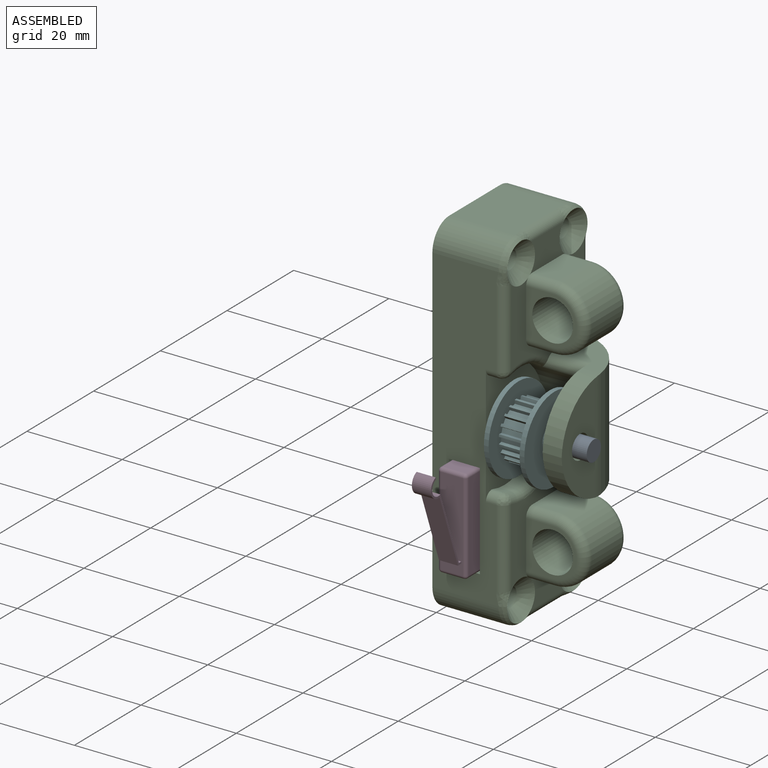
[diagram: assembled view]
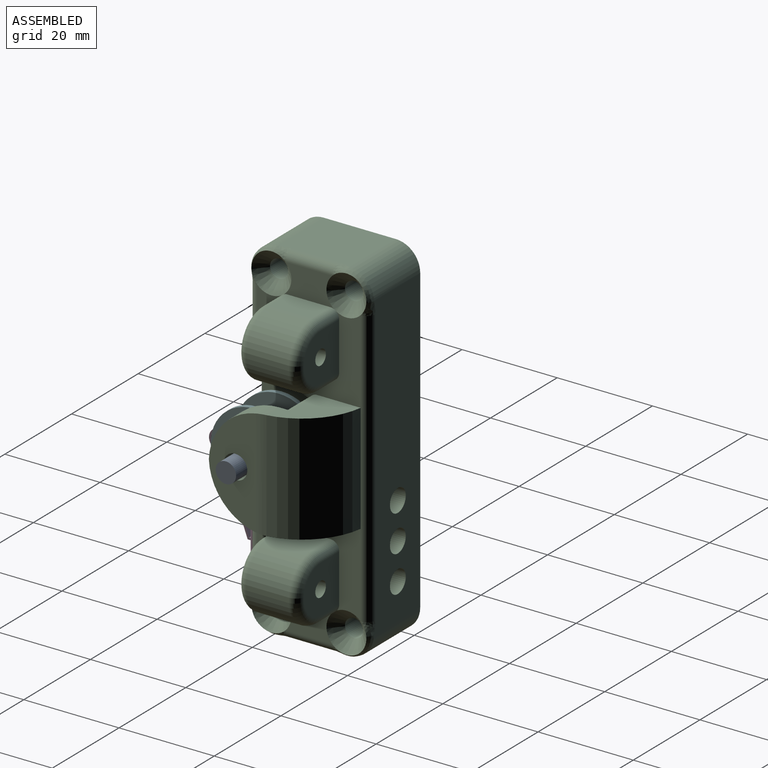
[diagram: assembled view, second angle]
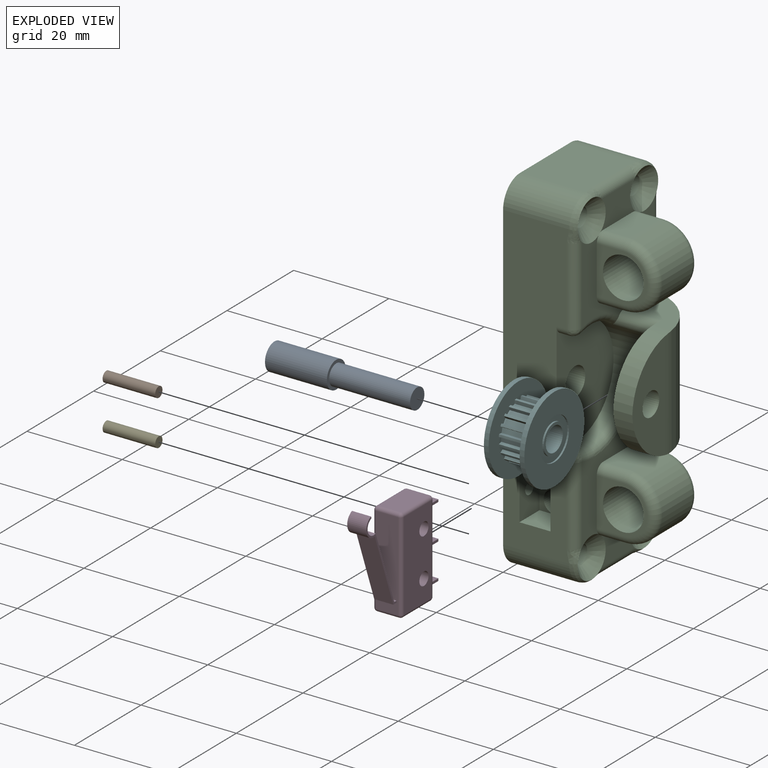
[diagram: exploded view]
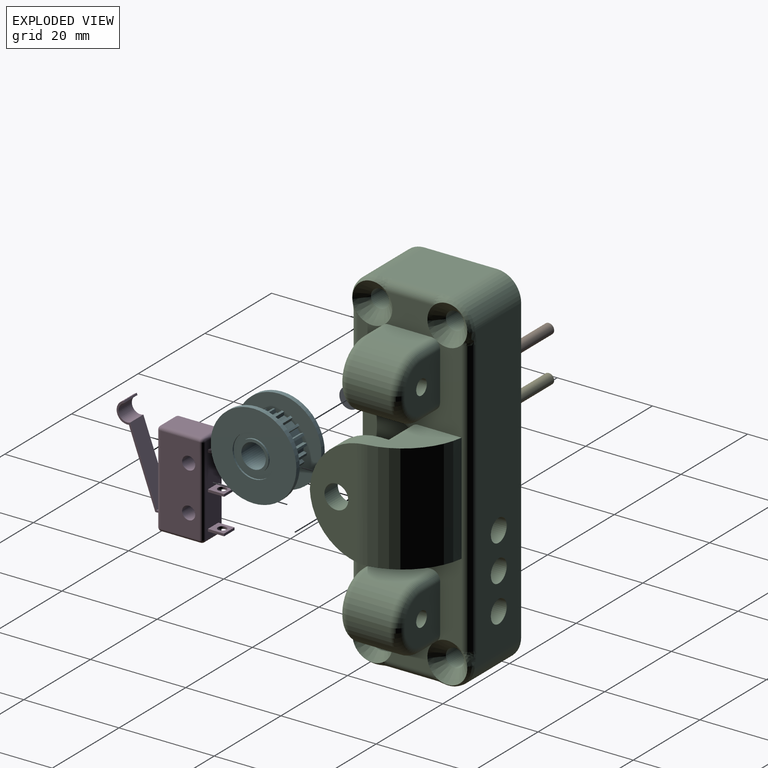
[diagram: exploded view, second angle]
ASSEMBLY  parts=6 mates=6
PART A: 5 faces, bbox 5.7x5.7x30 mm
  f0: plane 5.65x5.65mm, normal (0,0,-1), area 25.1mm2, adj f1
  f1: cylinder r=2.82mm len=13mm, axis (0,0,1), area 230.7mm2, adj f0,f2
  f2: plane 5.65x5.65mm, normal (0,0,1), area 10.5mm2, adj f1,f3
  f3: cylinder r=2.15mm len=17mm, axis (0,0,1), area 229.7mm2, adj f2,f4
  f4: plane 4.3x4.3mm, normal (0,0,1), area 14.5mm2, adj f3
PART B: 3 faces, bbox 2.2x2.2x11 mm
  f0: plane 2.2x2.2mm, normal (0,0,-1), area 3.8mm2, adj f1
  f1: cylinder r=1.1mm len=11.04mm, axis (0,0,1), area 76.3mm2, adj f0,f2
  f2: plane 2.2x2.2mm, normal (0,0,1), area 3.8mm2, adj f1
PART C: 101 faces, bbox 28.3x25.4x73.7 mm
  f0: plane 63.5x13.84mm, normal (0,-1,0), area 666.2mm2, adj f3,f16,f21,f24,f32,f34,f36,f67
  f1: cylinder r=11.49mm len=22.97mm, axis (1,0,0), area 284mm2, adj f67,f72,f77,f78,f79,f80,f81,f82
  f2: plane 21.72x18.22mm, normal (1,0,0), area 185.3mm2, adj f7,f8,f31,f34,f47,f49,f50,f55
  f3: cylinder r=1.84mm len=16.48mm, axis (0,0,1), area 47.5mm2, adj f0,f15,f36,f79
  f4: cylinder r=4.28mm len=10.16mm, axis (0,1,0), area 272.9mm2, adj f49,f53
  f5: cylinder r=4.28mm len=10.16mm, axis (0,1,0), area 272.9mm2, adj f44,f51
  f6: plane 10.37x6.2mm, normal (1,0,0), area 49.7mm2, adj f7,f8,f26,f48,f55,f58
  f7: cone r=1.91mm half-angle=45deg, axis (1,0,0), area 61.9mm2, adj f2,f6,f18,f25,f27,f29,f55
  f8: cone r=1.91mm half-angle=45deg, axis (1,0,0), area 61.9mm2, adj f2,f6,f19,f28,f30,f32,f58
  f9: plane 10.49x6.25mm, normal (1,0,0), area 49.9mm2, adj f10,f11,f39,f43,f61,f64
  f10: cone r=1.91mm half-angle=45deg, axis (1,0,0), area 61.9mm2, adj f9,f15,f20,f33,f35,f37,f61
  f11: cone r=1.91mm half-angle=45deg, axis (1,0,0), area 61.9mm2, adj f9,f15,f17,f36,f38,f40,f64
  f12: plane 15.24x13.84mm, normal (0,0,-1), area 205.3mm2, adj f16,f21,f22,f25,f26,f28
  f13: plane 63.5x13.84mm, normal (0,1,0), area 798.8mm2, adj f16,f22,f23,f29,f31,f33,f90,f91
  f14: plane 15.24x13.84mm, normal (0,0,1), area 205.3mm2, adj f16,f23,f24,f37,f39,f40
  f15: plane 21.72x18.22mm, normal (1,0,0), area 185mm2, adj f3,f10,f11,f31,f41,f44,f45,f61
  f16: plane 73.66x25.4mm, normal (-1,0,0), area 1737.2mm2, adj f0,f12,f13,f14,f17,f18,f19,f20
  f17: cylinder r=1.91mm len=12.95mm, axis (1,0,0), area 155.1mm2, adj f11,f16
  f18: cylinder r=1.91mm len=12.95mm, axis (1,0,0), area 155.1mm2, adj f7,f16
  f19: cylinder r=1.91mm len=12.95mm, axis (1,0,0), area 155.1mm2, adj f8,f16
  f20: cylinder r=1.91mm len=12.95mm, axis (1,0,0), area 155.1mm2, adj f10,f16
  f21: cylinder r=5.08mm len=13.84mm, axis (1,0,0), area 110.4mm2, adj f0,f12,f16,f30
  f22: cylinder r=5.08mm len=13.84mm, axis (-1,0,0), area 110.4mm2, adj f12,f13,f16,f27
  f23: cylinder r=5.08mm len=13.84mm, axis (1,0,0), area 110.4mm2, adj f13,f14,f16,f35
  f24: cylinder r=5.08mm len=13.84mm, axis (-1,0,0), area 110.4mm2, adj f0,f14,f16,f38
  f25: bspline ~3.41x2.08mm, area 5.5mm2, adj f7,f12,f26,f27
  f26: cylinder r=1.84mm len=9.87mm, axis (0,-1,0), area 28.5mm2, adj f6,f12,f25,f28
  f27: bspline ~5.18x5.18mm, area 11.6mm2, adj f7,f22,f25,f29
  f28: bspline ~3.41x2.08mm, area 5.5mm2, adj f8,f12,f26,f30
  f29: bspline ~3.41x2.08mm, area 5.5mm2, adj f7,f13,f27,f31
  f30: bspline ~5.18x5.18mm, area 11.6mm2, adj f8,f21,f28,f32
  f31: cylinder r=1.84mm len=58.13mm, axis (0,0,-1), area 168mm2, adj f2,f13,f15,f29,f33,f76
  f32: bspline ~3.41x2.08mm, area 5.5mm2, adj f0,f8,f30,f34
  f33: bspline ~3.41x2.08mm, area 5.5mm2, adj f10,f13,f31,f35
  f34: cylinder r=1.84mm len=16.48mm, axis (0,0,1), area 47.5mm2, adj f0,f2,f32,f83
  f35: bspline ~6.12x5.63mm, area 11.6mm2, adj f10,f23,f33,f37
  f36: bspline ~3.41x2.08mm, area 5.5mm2, adj f0,f3,f11,f38
  f37: bspline ~3.41x2.08mm, area 5.5mm2, adj f10,f14,f35,f39
  f38: bspline ~6.12x5.63mm, area 11.6mm2, adj f11,f24,f36,f40
  f39: cylinder r=1.84mm len=9.87mm, axis (0,1,0), area 28.5mm2, adj f9,f14,f37,f40
  f40: bspline ~3.41x2.08mm, area 5.5mm2, adj f11,f14,f38,f39
  f41: plane 9.02x5.56mm, normal (0,0,-1), area 50.2mm2, adj f15,f42,f63,f66
  f42: cylinder r=6.9mm len=13.79mm, axis (0,1,0), area 195.4mm2, adj f41,f43,f62,f65
  f43: plane 9.02x5.56mm, normal (0,0,1), area 50.2mm2, adj f9,f42,f61,f64
  f44: plane 10.62x10.11mm, normal (0,-1,0), area 39mm2, adj f5,f15,f64,f65,f66
  f45: plane 10.62x10.11mm, normal (0,1,0), area 88.5mm2, adj f15,f52,f61,f62,f63
  f46: cylinder r=6.9mm len=13.79mm, axis (0,1,0), area 195.4mm2, adj f47,f48,f56,f59
  f47: plane 9.02x5.56mm, normal (0,0,1), area 50.2mm2, adj f2,f46,f57,f60
  f48: plane 9.02x5.56mm, normal (0,0,-1), area 50.2mm2, adj f6,f46,f55,f58
  f49: plane 10.62x10.11mm, normal (0,-1,0), area 39mm2, adj f2,f4,f58,f59,f60
  f50: plane 10.62x10.11mm, normal (0,1,0), area 88.5mm2, adj f2,f54,f55,f56,f57
  f51: plane 8.55x8.55mm, normal (0,-1,0), area 49.5mm2, adj f5,f52
  f52: cylinder r=1.59mm len=3.18mm, axis (0,1,0), area 25.3mm2, adj f45,f51
  f53: plane 8.55x8.55mm, normal (0,-1,0), area 49.5mm2, adj f4,f54
  f54: cylinder r=1.59mm len=3.18mm, axis (0,1,0), area 25.3mm2, adj f50,f53
  f55: cylinder r=1.84mm len=5.56mm, axis (1,0,0), area 16.1mm2, adj f2,f6,f7,f48,f50,f56
  f56: torus R=5.06mm, axis (0,-1,0), area 56.5mm2, adj f46,f50,f55,f57
  f57: cylinder r=1.84mm len=5.56mm, axis (-1,0,0), area 16.1mm2, adj f2,f47,f50,f56
  f58: cylinder r=1.84mm len=5.56mm, axis (-1,0,0), area 16.1mm2, adj f2,f6,f8,f48,f49,f59
  f59: torus R=5.06mm, axis (0,-1,0), area 56.5mm2, adj f46,f49,f58,f60
  f60: cylinder r=1.84mm len=5.56mm, axis (1,0,0), area 16.1mm2, adj f2,f47,f49,f59
  f61: cylinder r=1.84mm len=5.56mm, axis (-1,0,0), area 16.1mm2, adj f9,f10,f15,f43,f45,f62
  f62: torus R=5.06mm, axis (0,-1,0), area 56.5mm2, adj f42,f45,f61,f63
  f63: cylinder r=1.84mm len=5.56mm, axis (1,0,0), area 16.1mm2, adj f15,f41,f45,f62
  f64: cylinder r=1.84mm len=5.56mm, axis (1,0,0), area 16.1mm2, adj f9,f11,f15,f43,f44,f65
  f65: torus R=5.06mm, axis (0,-1,0), area 56.5mm2, adj f42,f44,f64,f66
  f66: cylinder r=1.84mm len=5.56mm, axis (-1,0,0), area 16.1mm2, adj f15,f41,f44,f65
  f67: plane 25.17x17.08mm, normal (1,0,0), area 304.9mm2, adj f0,f1,f68,f80,f84
  f68: cylinder r=3mm len=11.24mm, axis (1,0,0), area 211.9mm2, adj f16,f67
  f69: plane 11.74x11.56mm, normal (0,0,1), area 79.6mm2, adj f15,f72,f75,f76,f77
  f70: plane 11.74x11.56mm, normal (0,0,-1), area 79.6mm2, adj f2,f72,f74,f76,f81
  f71: plane 22.61x9.92mm, normal (1,0,0), area 146.9mm2, adj f73,f74,f75,f76
  f72: plane 22.97x17.07mm, normal (-1,0,0), area 266.8mm2, adj f1,f69,f70,f73,f74,f75,f77,f81
  f73: cylinder r=2.5mm len=5mm, axis (1,0,0), area 62.8mm2, adj f71,f72
  f74: cylinder r=12mm len=11.99mm, axis (1,0,0), area 73.2mm2, adj f70,f71,f72,f75,f76
  f75: cylinder r=12mm len=11.99mm, axis (-1,0,0), area 73.2mm2, adj f69,f71,f72,f74,f76
  f76: cylinder r=13.76mm len=22.97mm, axis (0,0,-1), area 453.3mm2, adj f31,f69,f70,f71,f74,f75
  f77: cylinder r=1.69mm len=9.59mm, axis (1,0,0), area 34.3mm2, adj f1,f15,f69,f72,f78
  f78: torus R=13.18mm, axis (1,0,0), area 30mm2, adj f1,f15,f77,f79
  f79: bspline ~2.69x2.46mm, area 6mm2, adj f1,f3,f78,f80
  f80: cylinder r=1.69mm len=2.19mm, axis (1,0,0), area 6.8mm2, adj f0,f1,f67,f79
  f81: cylinder r=1.69mm len=9.59mm, axis (1,0,0), area 34.3mm2, adj f1,f2,f70,f72,f82
  f82: torus R=13.18mm, axis (1,0,0), area 30mm2, adj f1,f2,f81,f83
  f83: bspline ~2.69x2.46mm, area 6mm2, adj f1,f34,f82,f84
  f84: cylinder r=1.69mm len=2.19mm, axis (1,0,0), area 6.8mm2, adj f0,f1,f67,f83
  f85: plane 20.15x6mm, normal (-1,0,0), area 111.1mm2, adj f0,f86,f88,f89,f95,f97
  f86: plane 6.52x6mm, normal (0,0,-1), area 39.1mm2, adj f0,f85,f87,f89
  f87: plane 20.15x6mm, normal (1,0,0), area 111.1mm2, adj f0,f86,f88,f89,f93,f94
  f88: plane 6.52x6mm, normal (0,0,1), area 39.1mm2, adj f0,f85,f87,f89
  f89: plane 20.15x6.52mm, normal (0,-1,0), area 78.2mm2, adj f85,f86,f87,f88,f90,f91,f92
  f90: cylinder r=2.38mm len=19.4mm, axis (0,-1,0), area 289.5mm2, adj f13,f89
  f91: cylinder r=2.38mm len=19.4mm, axis (0,-1,0), area 289.5mm2, adj f13,f89
  f92: cylinder r=2.38mm len=19.4mm, axis (0,-1,0), area 289.5mm2, adj f13,f89
  f93: cylinder r=1.25mm len=2.5mm, axis (1,0,0), area 17.6mm2, adj f87,f99
  f94: cylinder r=1.25mm len=2.5mm, axis (1,0,0), area 17.6mm2, adj f87,f100
  f95: cylinder r=1.25mm len=2.5mm, axis (1,0,0), area 8.5mm2, adj f85,f96
  f96: plane 2.5x2.5mm, normal (-1,0,0), area 4.9mm2, adj f95
  f97: cylinder r=1.25mm len=2.5mm, axis (1,0,0), area 8.5mm2, adj f85,f98
  f98: plane 2.5x2.5mm, normal (-1,0,0), area 4.9mm2, adj f97
  f99: cone r=2.45mm half-angle=45deg, axis (-1,0,0), area 19.7mm2, adj f16,f93
  f100: cone r=2.45mm half-angle=45deg, axis (-1,0,0), area 19.7mm2, adj f16,f94
PART D: 55 faces, bbox 22.3x22.3x6.1 mm
  f0: plane 3.4x3.14mm, normal (-1,0,0), area 8.1mm2, adj f1,f9,f30,f31,f34
  f1: plane 3.14x0.5mm, normal (0,-1,0), area 1.6mm2, adj f0,f2,f30,f31
  f2: plane 3.4x3.14mm, normal (1,0,0), area 8.1mm2, adj f1,f9,f30,f31,f34
  f3: plane 3.4x3.14mm, normal (-1,0,0), area 8.1mm2, adj f4,f9,f28,f29,f33
  f4: plane 3.14x0.5mm, normal (0,-1,0), area 1.6mm2, adj f3,f5,f28,f29
  f5: plane 3.4x3.14mm, normal (1,0,0), area 8.1mm2, adj f4,f9,f28,f29,f33
  f6: plane 3.4x3.14mm, normal (-1,0,0), area 8.1mm2, adj f7,f9,f26,f27,f32
  f7: plane 3.14x0.5mm, normal (0,-1,0), area 1.6mm2, adj f6,f8,f26,f27
  f8: plane 3.4x3.14mm, normal (1,0,0), area 8.1mm2, adj f7,f9,f26,f27,f32
  f9: plane 18.55x4.6mm, normal (0,-1,0), area 80.7mm2, adj f0,f2,f3,f5,f6,f8,f26,f27
  f10: plane 8.3x4.6mm, normal (-1,0,0), area 38.2mm2, adj f43,f48,f51,f54
  f11: plane 8.3x4.6mm, normal (1,0,0), area 38.2mm2, adj f35,f39,f40,f41
  f12: cylinder r=1.38mm len=6.05mm, axis (0,0,-1), area 52.3mm2, adj f15,f16
  f13: plane 18.55x4.6mm, normal (0,1,0), area 83.8mm2, adj f17,f23,f24,f25,f35,f38,f42,f43
  f14: cylinder r=1.38mm len=6.05mm, axis (0,0,-1), area 52.3mm2, adj f15,f16
  f15: plane 18.55x8.3mm, normal (0,0,1), area 142.1mm2, adj f12,f14,f38,f39,f48,f49
  f16: plane 18.55x8.3mm, normal (0,0,-1), area 142.1mm2, adj f12,f14,f41,f42,f50,f51
  f17: plane 4x0.72mm, normal (1,0,0), area 2.9mm2, adj f13,f18,f24,f25
  f18: plane 15.15x5.58mm, normal (0.35,-0.94,0), area 64.6mm2, adj f17,f19,f24,f25
  f19: cylinder r=1.8mm len=4mm, axis (0,0,-1), area 22.6mm2, adj f18,f20,f24,f25
  f20: plane 4x0.38mm, normal (0.35,-0.94,0), area 1.6mm2, adj f19,f21,f24,f25
  f21: cylinder r=2.2mm len=4.26mm, axis (0,0,-1), area 26mm2, adj f20,f22,f24,f25
  f22: plane 15.07x5.55mm, normal (-0.35,0.94,0), area 64.2mm2, adj f21,f23,f24,f25
  f23: plane 4x1mm, normal (-1,0,0), area 4mm2, adj f13,f22,f24,f25
  f24: plane 19.3x9.12mm, normal (0,0,1), area 9.2mm2, adj f13,f17,f18,f19,f20,f21,f22,f23
  f25: plane 19.3x9.12mm, normal (0,0,-1), area 9.2mm2, adj f13,f17,f18,f19,f20,f21,f22,f23
  f26: plane 3.4x0.5mm, normal (0,0,-1), area 1.7mm2, adj f6,f7,f8,f9
  f27: plane 3.4x0.5mm, normal (0,0,1), area 1.7mm2, adj f6,f7,f8,f9
  f28: plane 3.4x0.5mm, normal (0,0,-1), area 1.7mm2, adj f3,f4,f5,f9
  f29: plane 3.4x0.5mm, normal (0,0,1), area 1.7mm2, adj f3,f4,f5,f9
  f30: plane 3.4x0.5mm, normal (0,0,-1), area 1.7mm2, adj f0,f1,f2,f9
  f31: plane 3.4x0.5mm, normal (0,0,1), area 1.7mm2, adj f0,f1,f2,f9
  f32: cylinder r=0.9mm len=1.8mm, axis (-1,0,0), area 2.8mm2, adj f6,f8
  f33: cylinder r=0.9mm len=1.8mm, axis (-1,0,0), area 2.8mm2, adj f3,f5
  f34: cylinder r=0.9mm len=1.8mm, axis (-1,0,0), area 2.8mm2, adj f0,f2
  f35: cylinder r=0.72mm len=4.6mm, axis (0,0,1), area 5.2mm2, adj f11,f13,f36,f37
  f36: sphere r=0.72mm, area 0.8mm2, adj f35,f38,f39
  f37: sphere r=0.72mm, area 0.8mm2, adj f35,f41,f42
  f38: cylinder r=0.72mm len=18.55mm, axis (1,0,0), area 21.1mm2, adj f13,f15,f36,f44
  f39: cylinder r=0.72mm len=8.3mm, axis (0,-1,0), area 9.4mm2, adj f11,f15,f36,f45
  f40: cylinder r=0.72mm len=4.6mm, axis (0,0,-1), area 5.2mm2, adj f9,f11,f45,f46
  f41: cylinder r=0.72mm len=8.3mm, axis (0,1,0), area 9.4mm2, adj f11,f16,f37,f46
  f42: cylinder r=0.72mm len=18.55mm, axis (-1,0,0), area 21.1mm2, adj f13,f16,f37,f47
  f43: cylinder r=0.72mm len=4.6mm, axis (0,0,-1), area 5.2mm2, adj f10,f13,f44,f47
  f44: sphere r=0.72mm, area 0.8mm2, adj f38,f43,f48
  f45: sphere r=0.72mm, area 0.8mm2, adj f39,f40,f49
  f46: sphere r=0.72mm, area 0.8mm2, adj f40,f41,f50
  f47: sphere r=0.72mm, area 0.8mm2, adj f42,f43,f51
  f48: cylinder r=0.72mm len=8.3mm, axis (0,1,0), area 9.4mm2, adj f10,f15,f44,f52
  f49: cylinder r=0.72mm len=18.55mm, axis (-1,0,0), area 21.1mm2, adj f9,f15,f45,f52
  f50: cylinder r=0.72mm len=18.55mm, axis (1,0,0), area 21.1mm2, adj f9,f16,f46,f53
  f51: cylinder r=0.72mm len=8.3mm, axis (0,-1,0), area 9.4mm2, adj f10,f16,f47,f53
  f52: sphere r=0.72mm, area 0.8mm2, adj f48,f49,f54
  f53: sphere r=0.72mm, area 0.8mm2, adj f50,f51,f54
  f54: cylinder r=0.72mm len=4.6mm, axis (0,0,1), area 5.2mm2, adj f9,f10,f52,f53
PART E: same geometry as B
PART F: 95 faces, bbox 18x18x8.5 mm
  f0: cylinder r=6mm len=6.5mm, axis (0,0,1), area 3.3mm2, adj f3,f85,f86,f92
  f1: plane 6.5x0.95mm, normal (0.31,0.95,0), area 6.5mm2, adj f2,f3,f85,f86
  f2: plane 6.5x0.62mm, normal (-0.84,0.54,0), area 4.8mm2, adj f1,f4,f85,f86
  f3: plane 6.5x0.73mm, normal (1,-0.05,0), area 4.8mm2, adj f0,f1,f85,f86
  f4: cylinder r=6mm len=6.5mm, axis (0,0,1), area 3.3mm2, adj f2,f7,f85,f86
  f5: plane 6.5x0.81mm, normal (0.59,0.81,0), area 6.5mm2, adj f6,f7,f85,f86
  f6: plane 6.5x0.57mm, normal (-0.63,0.78,0), area 4.8mm2, adj f5,f8,f85,f86
  f7: plane 6.5x0.69mm, normal (0.93,-0.36,0), area 4.8mm2, adj f4,f5,f85,f86
  f8: cylinder r=6mm len=6.5mm, axis (0,0,1), area 3.3mm2, adj f6,f11,f85,f86
  f9: plane 6.5x0.81mm, normal (0.81,0.59,0), area 6.5mm2, adj f10,f11,f85,f86
  f10: plane 6.5x0.69mm, normal (-0.36,0.93,0), area 4.8mm2, adj f9,f12,f85,f86
  f11: plane 6.5x0.57mm, normal (0.78,-0.63,0), area 4.8mm2, adj f8,f9,f85,f86
  f12: cylinder r=6mm len=6.5mm, axis (0,0,1), area 3.3mm2, adj f10,f15,f85,f86
  f13: plane 6.5x0.95mm, normal (0.95,0.31,0), area 6.5mm2, adj f14,f15,f85,f86
  f14: plane 6.5x0.73mm, normal (-0.05,1,0), area 4.8mm2, adj f13,f16,f85,f86
  f15: plane 6.5x0.62mm, normal (0.54,-0.84,0), area 4.8mm2, adj f12,f13,f85,f86
  f16: cylinder r=6mm len=6.5mm, axis (0,0,1), area 3.3mm2, adj f14,f19,f85,f86
  f17: plane 6.5x1mm, normal (1,0,0), area 6.5mm2, adj f18,f19,f85,f86
  f18: plane 6.5x0.71mm, normal (0.26,0.97,0), area 4.8mm2, adj f17,f20,f85,f86
  f19: plane 6.5x0.71mm, normal (0.26,-0.97,0), area 4.8mm2, adj f16,f17,f85,f86
  f20: cylinder r=6mm len=6.5mm, axis (0,0,1), area 3.3mm2, adj f18,f23,f85,f86
  f21: plane 6.5x0.95mm, normal (0.95,-0.31,0), area 6.5mm2, adj f22,f23,f85,f86
  f22: plane 6.5x0.62mm, normal (0.54,0.84,0), area 4.8mm2, adj f21,f24,f85,f86
  f23: plane 6.5x0.73mm, normal (-0.05,-1,0), area 4.8mm2, adj f20,f21,f85,f86
  f24: cylinder r=6mm len=6.5mm, axis (0,0,1), area 3.3mm2, adj f22,f27,f85,f86
  f25: plane 6.5x0.81mm, normal (0.81,-0.59,0), area 6.5mm2, adj f26,f27,f85,f86
  f26: plane 6.5x0.57mm, normal (0.78,0.63,0), area 4.8mm2, adj f25,f28,f85,f86
  f27: plane 6.5x0.69mm, normal (-0.36,-0.93,0), area 4.8mm2, adj f24,f25,f85,f86
  f28: cylinder r=6mm len=6.5mm, axis (0,0,1), area 3.3mm2, adj f26,f31,f85,f86
  f29: plane 6.5x0.81mm, normal (0.59,-0.81,0), area 6.5mm2, adj f30,f31,f85,f86
  f30: plane 6.5x0.69mm, normal (0.93,0.36,0), area 4.8mm2, adj f29,f32,f85,f86
  f31: plane 6.5x0.57mm, normal (-0.63,-0.78,0), area 4.8mm2, adj f28,f29,f85,f86
  f32: cylinder r=6mm len=6.5mm, axis (0,0,1), area 3.3mm2, adj f30,f35,f85,f86
  f33: plane 6.5x0.95mm, normal (0.31,-0.95,0), area 6.5mm2, adj f34,f35,f85,f86
  f34: plane 6.5x0.73mm, normal (1,0.05,0), area 4.8mm2, adj f33,f36,f85,f86
  f35: plane 6.5x0.62mm, normal (-0.84,-0.54,0), area 4.8mm2, adj f32,f33,f85,f86
  f36: cylinder r=6mm len=6.5mm, axis (0,0,1), area 3.3mm2, adj f34,f39,f85,f86
  f37: plane 6.5x1mm, normal (0,-1,0), area 6.5mm2, adj f38,f39,f85,f86
  f38: plane 6.5x0.71mm, normal (0.97,-0.26,0), area 4.8mm2, adj f37,f40,f85,f86
  f39: plane 6.5x0.71mm, normal (-0.97,-0.26,0), area 4.8mm2, adj f36,f37,f85,f86
  f40: cylinder r=6mm len=6.5mm, axis (0,0,1), area 3.3mm2, adj f38,f43,f85,f86
  f41: plane 6.5x0.95mm, normal (-0.31,-0.95,0), area 6.5mm2, adj f42,f43,f85,f86
  f42: plane 6.5x0.62mm, normal (0.84,-0.54,0), area 4.8mm2, adj f41,f44,f85,f86
  f43: plane 6.5x0.73mm, normal (-1,0.05,0), area 4.8mm2, adj f40,f41,f85,f86
  f44: cylinder r=6mm len=6.5mm, axis (0,0,1), area 3.3mm2, adj f42,f47,f85,f86
  f45: plane 6.5x0.81mm, normal (-0.59,-0.81,0), area 6.5mm2, adj f46,f47,f85,f86
  f46: plane 6.5x0.57mm, normal (0.63,-0.78,0), area 4.8mm2, adj f45,f48,f85,f86
  f47: plane 6.5x0.69mm, normal (-0.93,0.36,0), area 4.8mm2, adj f44,f45,f85,f86
  f48: cylinder r=6mm len=6.5mm, axis (0,0,1), area 3.3mm2, adj f46,f51,f85,f86
  f49: plane 6.5x0.81mm, normal (-0.81,-0.59,0), area 6.5mm2, adj f50,f51,f85,f86
  f50: plane 6.5x0.69mm, normal (0.36,-0.93,0), area 4.8mm2, adj f49,f52,f85,f86
  f51: plane 6.5x0.57mm, normal (-0.78,0.63,0), area 4.8mm2, adj f48,f49,f85,f86
  f52: cylinder r=6mm len=6.5mm, axis (0,0,1), area 3.3mm2, adj f50,f55,f85,f86
  f53: plane 6.5x0.95mm, normal (-0.95,-0.31,0), area 6.5mm2, adj f54,f55,f85,f86
  f54: plane 6.5x0.73mm, normal (0.05,-1,0), area 4.8mm2, adj f53,f56,f85,f86
  f55: plane 6.5x0.62mm, normal (-0.54,0.84,0), area 4.8mm2, adj f52,f53,f85,f86
  f56: cylinder r=6mm len=6.5mm, axis (0,0,1), area 3.3mm2, adj f54,f59,f85,f86
  f57: plane 6.5x1mm, normal (-1,0,0), area 6.5mm2, adj f58,f59,f85,f86
  f58: plane 6.5x0.71mm, normal (-0.26,-0.97,0), area 4.8mm2, adj f57,f60,f85,f86
  f59: plane 6.5x0.71mm, normal (-0.26,0.97,0), area 4.8mm2, adj f56,f57,f85,f86
  f60: cylinder r=6mm len=6.5mm, axis (0,0,1), area 3.3mm2, adj f58,f63,f85,f86
  f61: plane 6.5x0.95mm, normal (-0.95,0.31,0), area 6.5mm2, adj f62,f63,f85,f86
  f62: plane 6.5x0.62mm, normal (-0.54,-0.84,0), area 4.8mm2, adj f61,f64,f85,f86
  f63: plane 6.5x0.73mm, normal (0.05,1,0), area 4.8mm2, adj f60,f61,f85,f86
  f64: cylinder r=6mm len=6.5mm, axis (0,0,1), area 3.3mm2, adj f62,f67,f85,f86
  f65: plane 6.5x0.81mm, normal (-0.81,0.59,0), area 6.5mm2, adj f66,f67,f85,f86
  f66: plane 6.5x0.57mm, normal (-0.78,-0.63,0), area 4.8mm2, adj f65,f68,f85,f86
  f67: plane 6.5x0.69mm, normal (0.36,0.93,0), area 4.8mm2, adj f64,f65,f85,f86
  f68: cylinder r=6mm len=6.5mm, axis (0,0,1), area 3.3mm2, adj f66,f71,f85,f86
  f69: plane 6.5x0.81mm, normal (-0.59,0.81,0), area 6.5mm2, adj f70,f71,f85,f86
  f70: plane 6.5x0.69mm, normal (-0.93,-0.36,0), area 4.8mm2, adj f69,f72,f85,f86
  f71: plane 6.5x0.57mm, normal (0.63,0.78,0), area 4.8mm2, adj f68,f69,f85,f86
  f72: cylinder r=6mm len=6.5mm, axis (0,0,1), area 3.3mm2, adj f70,f75,f85,f86
  f73: plane 6.5x0.95mm, normal (-0.31,0.95,0), area 6.5mm2, adj f74,f75,f85,f86
  f74: plane 6.5x0.73mm, normal (-1,-0.05,0), area 4.8mm2, adj f73,f76,f85,f86
  f75: plane 6.5x0.62mm, normal (0.84,0.54,0), area 4.8mm2, adj f72,f73,f85,f86
  f76: cylinder r=6mm len=6.5mm, axis (0,0,1), area 3.3mm2, adj f74,f85,f86,f94
  f77: plane 6.3x6.3mm, normal (0,0,1), area 10.7mm2, adj f78,f91
  f78: cylinder r=2.55mm len=8.5mm, axis (0,0,1), area 136.2mm2, adj f77,f79
  f79: plane 6.3x6.3mm, normal (0,0,-1), area 10.7mm2, adj f78,f80
  f80: cylinder r=3.15mm len=6.3mm, axis (0,0,1), area 6.9mm2, adj f79,f81
  f81: plane 8.8x8.8mm, normal (0,0,-1), area 29.6mm2, adj f80,f82
  f82: cylinder r=4.4mm len=8.8mm, axis (0,0,1), area 9.7mm2, adj f81,f83
  f83: plane 18x18mm, normal (0,0,-1), area 193.6mm2, adj f82,f84
  f84: cylinder r=9mm len=18mm, axis (0,0,1), area 56.5mm2, adj f83,f85
  f85: plane 18x18mm, normal (0,0,1), area 159mm2, adj f0,f1,f2,f3,f4,f5,f6,f7
  f86: plane 18x18mm, normal (0,0,-1), area 159mm2, adj f0,f1,f2,f3,f4,f5,f6,f7
  f87: cylinder r=9mm len=18mm, axis (0,0,1), area 56.5mm2, adj f86,f88
  f88: plane 18x18mm, normal (0,0,1), area 193.6mm2, adj f87,f89
  f89: cylinder r=4.4mm len=8.8mm, axis (0,0,1), area 9.7mm2, adj f88,f90
  f90: plane 8.8x8.8mm, normal (0,0,1), area 29.6mm2, adj f89,f91
  f91: cylinder r=3.15mm len=6.3mm, axis (0,0,1), area 6.9mm2, adj f77,f90
  f92: plane 6.5x0.71mm, normal (-0.97,0.26,0), area 4.8mm2, adj f0,f85,f86,f93
  f93: plane 6.5x1mm, normal (0,1,0), area 6.5mm2, adj f85,f86,f92,f94
  f94: plane 6.5x0.71mm, normal (0.97,0.26,0), area 4.8mm2, adj f76,f85,f86,f93
PLACE A rot(axis=(0,1,0),90deg) t=(1.39,22.42,31.1)mm
PLACE B rot(axis=(0,-1,0),90deg) t=(12.43,19.83,19.3)mm
PLACE C t=(1.39,16.83,-5.73)mm fixed
PLACE D rot(axis=(0.71,0,0.71),180deg) t=(8.09,22.83,4.55)mm
PLACE E rot(axis=(0.71,0,-0.71),180deg) t=(12.43,19.83,9.8)mm
PLACE F rot(axis=(0,-1,0),90deg) t=(18.84,22.42,31.1)mm
MATE revolute A.f1 <-> C.f1  axis (-1,0,0) through (1.39,22.42,31.1)mm
MATE slider E.f1 <-> C.f93  axis (-1,0,0) through (1.39,19.83,9.8)mm
MATE revolute F.f0 <-> A.f1  axis (-1,0,0) through (23.09,22.42,31.1)mm
MATE fastened D.f9 <-> C.f90  axis (0,1,0) through (8.09,22.83,14.55)mm
MATE parallel F.f0 <-> C.f15  axis (1,0,0) through (23.09,22.42,31.1)mm
MATE slider B.f1 <-> C.f94  axis (-1,0,0) through (1.39,19.83,19.3)mm
